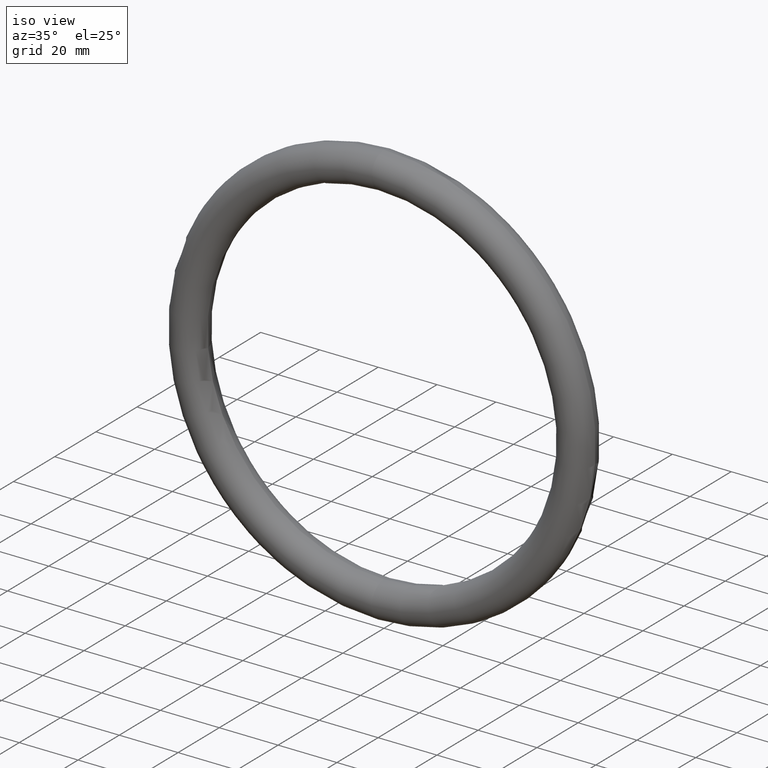
[diagram: clean part render]
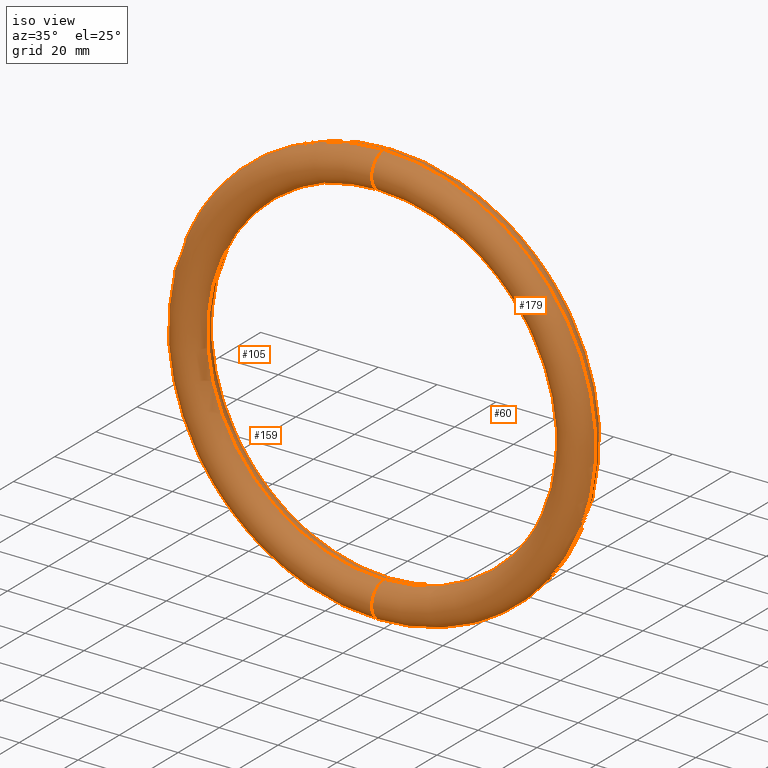
[diagram: same view with one multi-face feature highlighted, each face labeled with its STEP entity id]
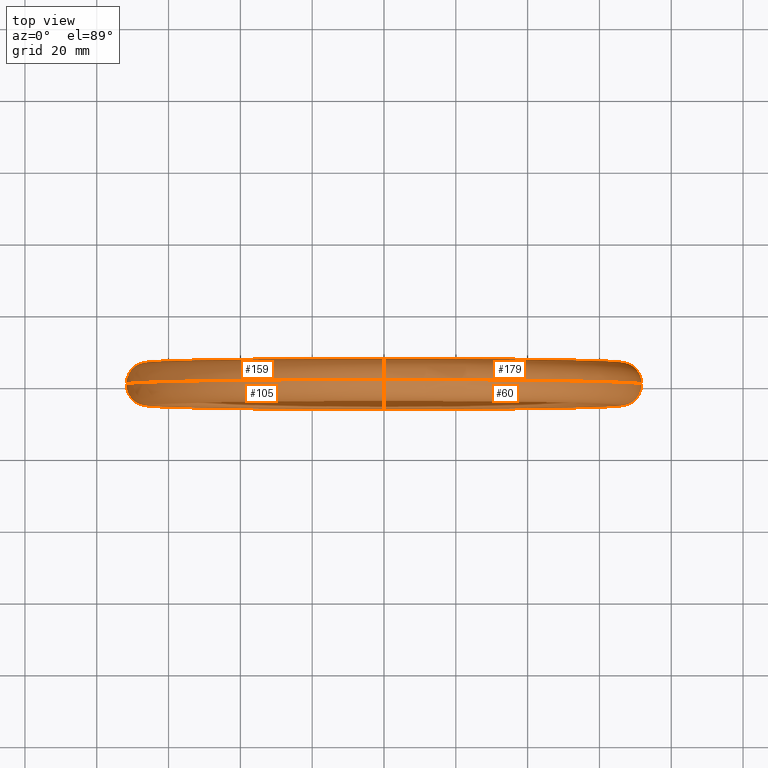
[diagram: same view with one multi-face feature highlighted, each face labeled with its STEP entity id]
A machine part, iso view. The highlighted faces form ONE feature: a constant-radius fillet chain: 4 tangent blend faces with common blend radius 6 mm. The faces share edges in the B-rep.
A second angle (top view) of the same feature is appended — it is thin or edge-on in the first view.
Their STEP definitions:
[1] entity #179 (Torus):
#12 = CIRCLE ( 'NONE', #49, 59.99999999999998579 ) ;
#15 = AXIS2_PLACEMENT_3D ( 'NONE', #102, #131, #232 ) ;
#25 = VERTEX_POINT ( 'NONE', #79 ) ;
#30 = AXIS2_PLACEMENT_3D ( 'NONE', #233, #185, #45 ) ;
#43 = VERTEX_POINT ( 'NONE', #100 ) ;
#45 = DIRECTION ( 'NONE',  ( 0.000000000000000000, 0.000000000000000000, 1.000000000000000000 ) ) ;
#49 = AXIS2_PLACEMENT_3D ( 'NONE', #89, #202, #203 ) ;
#58 = CIRCLE ( 'NONE', #30, 6.000000000000005329 ) ;
#62 = EDGE_LOOP ( 'NONE', ( #199, #137, #118, #71 ) ) ;
#68 = FACE_OUTER_BOUND ( 'NONE', #62, .T. ) ;
#71 = ORIENTED_EDGE ( 'NONE', *, *, #146, .T. ) ;
#72 = AXIS2_PLACEMENT_3D ( 'NONE', #264, #261, #147 ) ;
#79 = CARTESIAN_POINT ( 'NONE',  ( 8.817456953860941711E-15, 0.000000000000000000, 72.00000000000000000 ) ) ;
#89 = CARTESIAN_POINT ( 'NONE',  ( 0.000000000000000000, 7.347880794884122694E-16, 0.000000000000000000 ) ) ;
#90 = EDGE_CURVE ( 'NONE', #142, #25, #155, .T. ) ;
#100 = CARTESIAN_POINT ( 'NONE',  ( 7.347880794884118356E-15, 0.000000000000000000, 59.99999999999998579 ) ) ;
#102 = CARTESIAN_POINT ( 'NONE',  ( 0.000000000000000000, 0.000000000000000000, 0.000000000000000000 ) ) ;
#108 = EDGE_CURVE ( 'NONE', #223, #142, #58, .T. ) ;
#116 = TOROIDAL_SURFACE ( 'NONE', #72, 65.99999999999998579, 6.000000000000002665 ) ;
#117 = CARTESIAN_POINT ( 'NONE',  ( 8.082668874372530822E-15, 0.000000000000000000, 65.99999999999998579 ) ) ;
#118 = ORIENTED_EDGE ( 'NONE', *, *, #141, .T. ) ;
#128 = CIRCLE ( 'NONE', #153, 6.000000000000005329 ) ;
#131 = DIRECTION ( 'NONE',  ( -0.000000000000000000, -1.000000000000000000, -0.000000000000000000 ) ) ;
#137 = ORIENTED_EDGE ( 'NONE', *, *, #108, .F. ) ;
#141 = EDGE_CURVE ( 'NONE', #223, #43, #12, .T. ) ;
#142 = VERTEX_POINT ( 'NONE', #251 ) ;
#146 = EDGE_CURVE ( 'NONE', #43, #25, #128, .T. ) ;
#147 = DIRECTION ( 'NONE',  ( 0.000000000000000000, 0.000000000000000000, -1.000000000000000000 ) ) ;
#153 = AXIS2_PLACEMENT_3D ( 'NONE', #117, #241, #187 ) ;
#155 = CIRCLE ( 'NONE', #15, 72.00000000000000000 ) ;
#179 = ADVANCED_FACE ( 'NONE', ( #68 ), #116, .T. ) ;
#185 = DIRECTION ( 'NONE',  ( -1.000000000000000000, 0.000000000000000000, 0.000000000000000000 ) ) ;
#187 = DIRECTION ( 'NONE',  ( -1.224646799147351975E-16, 0.000000000000000000, -1.000000000000000000 ) ) ;
#199 = ORIENTED_EDGE ( 'NONE', *, *, #90, .F. ) ;
#202 = DIRECTION ( 'NONE',  ( -0.000000000000000000, -1.000000000000000000, -0.000000000000000000 ) ) ;
#203 = DIRECTION ( 'NONE',  ( 0.000000000000000000, 0.000000000000000000, -1.000000000000000000 ) ) ;
#223 = VERTEX_POINT ( 'NONE', #224 ) ;
#224 = CARTESIAN_POINT ( 'NONE',  ( 0.000000000000000000, 0.000000000000000000, -59.99999999999998579 ) ) ;
#232 = DIRECTION ( 'NONE',  ( 0.000000000000000000, 0.000000000000000000, -1.000000000000000000 ) ) ;
#233 = CARTESIAN_POINT ( 'NONE',  ( 0.000000000000000000, 0.000000000000000000, -65.99999999999998579 ) ) ;
#241 = DIRECTION ( 'NONE',  ( 1.000000000000000000, 0.000000000000000000, -1.224646799147353207E-16 ) ) ;
#251 = CARTESIAN_POINT ( 'NONE',  ( 0.000000000000000000, 0.000000000000000000, -72.00000000000000000 ) ) ;
#261 = DIRECTION ( 'NONE',  ( -0.000000000000000000, -1.000000000000000000, -0.000000000000000000 ) ) ;
#264 = CARTESIAN_POINT ( 'NONE',  ( 0.000000000000000000, 0.000000000000000000, 0.000000000000000000 ) ) ;
[2] entity #159 (Torus):
#2 = ORIENTED_EDGE ( 'NONE', *, *, #136, .T. ) ;
#25 = VERTEX_POINT ( 'NONE', #79 ) ;
#29 = DIRECTION ( 'NONE',  ( 0.000000000000000000, 0.000000000000000000, -1.000000000000000000 ) ) ;
#30 = AXIS2_PLACEMENT_3D ( 'NONE', #233, #185, #45 ) ;
#33 = AXIS2_PLACEMENT_3D ( 'NONE', #242, #164, #29 ) ;
#42 = AXIS2_PLACEMENT_3D ( 'NONE', #53, #247, #121 ) ;
#43 = VERTEX_POINT ( 'NONE', #100 ) ;
#45 = DIRECTION ( 'NONE',  ( 0.000000000000000000, 0.000000000000000000, 1.000000000000000000 ) ) ;
#53 = CARTESIAN_POINT ( 'NONE',  ( 0.000000000000000000, 0.000000000000000000, 0.000000000000000000 ) ) ;
#58 = CIRCLE ( 'NONE', #30, 6.000000000000005329 ) ;
#63 = AXIS2_PLACEMENT_3D ( 'NONE', #200, #112, #216 ) ;
#74 = EDGE_LOOP ( 'NONE', ( #145, #123, #2, #237 ) ) ;
#79 = CARTESIAN_POINT ( 'NONE',  ( 8.817456953860941711E-15, 0.000000000000000000, 72.00000000000000000 ) ) ;
#100 = CARTESIAN_POINT ( 'NONE',  ( 7.347880794884118356E-15, 0.000000000000000000, 59.99999999999998579 ) ) ;
#108 = EDGE_CURVE ( 'NONE', #223, #142, #58, .T. ) ;
#112 = DIRECTION ( 'NONE',  ( -0.000000000000000000, -1.000000000000000000, -0.000000000000000000 ) ) ;
#117 = CARTESIAN_POINT ( 'NONE',  ( 8.082668874372530822E-15, 0.000000000000000000, 65.99999999999998579 ) ) ;
#121 = DIRECTION ( 'NONE',  ( 0.000000000000000000, 0.000000000000000000, -1.000000000000000000 ) ) ;
#123 = ORIENTED_EDGE ( 'NONE', *, *, #146, .F. ) ;
#128 = CIRCLE ( 'NONE', #153, 6.000000000000005329 ) ;
#135 = FACE_OUTER_BOUND ( 'NONE', #74, .T. ) ;
#136 = EDGE_CURVE ( 'NONE', #43, #223, #239, .T. ) ;
#142 = VERTEX_POINT ( 'NONE', #251 ) ;
#145 = ORIENTED_EDGE ( 'NONE', *, *, #262, .F. ) ;
#146 = EDGE_CURVE ( 'NONE', #43, #25, #128, .T. ) ;
#153 = AXIS2_PLACEMENT_3D ( 'NONE', #117, #241, #187 ) ;
#159 = ADVANCED_FACE ( 'NONE', ( #135 ), #189, .T. ) ;
#161 = CIRCLE ( 'NONE', #42, 72.00000000000000000 ) ;
#164 = DIRECTION ( 'NONE',  ( -0.000000000000000000, -1.000000000000000000, -0.000000000000000000 ) ) ;
#185 = DIRECTION ( 'NONE',  ( -1.000000000000000000, 0.000000000000000000, 0.000000000000000000 ) ) ;
#187 = DIRECTION ( 'NONE',  ( -1.224646799147351975E-16, 0.000000000000000000, -1.000000000000000000 ) ) ;
#189 = TOROIDAL_SURFACE ( 'NONE', #33, 65.99999999999998579, 6.000000000000002665 ) ;
#200 = CARTESIAN_POINT ( 'NONE',  ( 0.000000000000000000, 7.347880794884122694E-16, 0.000000000000000000 ) ) ;
#216 = DIRECTION ( 'NONE',  ( 0.000000000000000000, 0.000000000000000000, -1.000000000000000000 ) ) ;
#223 = VERTEX_POINT ( 'NONE', #224 ) ;
#224 = CARTESIAN_POINT ( 'NONE',  ( 0.000000000000000000, 0.000000000000000000, -59.99999999999998579 ) ) ;
#233 = CARTESIAN_POINT ( 'NONE',  ( 0.000000000000000000, 0.000000000000000000, -65.99999999999998579 ) ) ;
#237 = ORIENTED_EDGE ( 'NONE', *, *, #108, .T. ) ;
#239 = CIRCLE ( 'NONE', #63, 59.99999999999998579 ) ;
#241 = DIRECTION ( 'NONE',  ( 1.000000000000000000, 0.000000000000000000, -1.224646799147353207E-16 ) ) ;
#242 = CARTESIAN_POINT ( 'NONE',  ( 0.000000000000000000, 0.000000000000000000, 0.000000000000000000 ) ) ;
#247 = DIRECTION ( 'NONE',  ( -0.000000000000000000, -1.000000000000000000, -0.000000000000000000 ) ) ;
#251 = CARTESIAN_POINT ( 'NONE',  ( 0.000000000000000000, 0.000000000000000000, -72.00000000000000000 ) ) ;
#262 = EDGE_CURVE ( 'NONE', #25, #142, #161, .T. ) ;
[3] entity #105 (Torus):
#4 = EDGE_CURVE ( 'NONE', #25, #43, #204, .T. ) ;
#14 = CARTESIAN_POINT ( 'NONE',  ( 0.000000000000000000, 0.000000000000000000, 0.000000000000000000 ) ) ;
#25 = VERTEX_POINT ( 'NONE', #79 ) ;
#35 = EDGE_CURVE ( 'NONE', #142, #223, #210, .T. ) ;
#36 = DIRECTION ( 'NONE',  ( -1.224646799147351975E-16, 0.000000000000000000, -1.000000000000000000 ) ) ;
#42 = AXIS2_PLACEMENT_3D ( 'NONE', #53, #247, #121 ) ;
#43 = VERTEX_POINT ( 'NONE', #100 ) ;
#53 = CARTESIAN_POINT ( 'NONE',  ( 0.000000000000000000, 0.000000000000000000, 0.000000000000000000 ) ) ;
#63 = AXIS2_PLACEMENT_3D ( 'NONE', #200, #112, #216 ) ;
#65 = FACE_OUTER_BOUND ( 'NONE', #114, .T. ) ;
#66 = ORIENTED_EDGE ( 'NONE', *, *, #35, .T. ) ;
#79 = CARTESIAN_POINT ( 'NONE',  ( 8.817456953860941711E-15, 0.000000000000000000, 72.00000000000000000 ) ) ;
#100 = CARTESIAN_POINT ( 'NONE',  ( 7.347880794884118356E-15, 0.000000000000000000, 59.99999999999998579 ) ) ;
#105 = ADVANCED_FACE ( 'NONE', ( #65 ), #253, .T. ) ;
#109 = DIRECTION ( 'NONE',  ( 0.000000000000000000, 0.000000000000000000, -1.000000000000000000 ) ) ;
#112 = DIRECTION ( 'NONE',  ( -0.000000000000000000, -1.000000000000000000, -0.000000000000000000 ) ) ;
#114 = EDGE_LOOP ( 'NONE', ( #240, #178, #66, #182 ) ) ;
#121 = DIRECTION ( 'NONE',  ( 0.000000000000000000, 0.000000000000000000, -1.000000000000000000 ) ) ;
#136 = EDGE_CURVE ( 'NONE', #43, #223, #239, .T. ) ;
#142 = VERTEX_POINT ( 'NONE', #251 ) ;
#150 = DIRECTION ( 'NONE',  ( 1.000000000000000000, 0.000000000000000000, -1.224646799147353207E-16 ) ) ;
#160 = AXIS2_PLACEMENT_3D ( 'NONE', #265, #150, #36 ) ;
#161 = CIRCLE ( 'NONE', #42, 72.00000000000000000 ) ;
#171 = DIRECTION ( 'NONE',  ( 0.000000000000000000, 0.000000000000000000, 1.000000000000000000 ) ) ;
#178 = ORIENTED_EDGE ( 'NONE', *, *, #262, .T. ) ;
#182 = ORIENTED_EDGE ( 'NONE', *, *, #136, .F. ) ;
#200 = CARTESIAN_POINT ( 'NONE',  ( 0.000000000000000000, 7.347880794884122694E-16, 0.000000000000000000 ) ) ;
#204 = CIRCLE ( 'NONE', #160, 6.000000000000005329 ) ;
#210 = CIRCLE ( 'NONE', #259, 6.000000000000005329 ) ;
#211 = DIRECTION ( 'NONE',  ( -1.000000000000000000, 0.000000000000000000, 0.000000000000000000 ) ) ;
#216 = DIRECTION ( 'NONE',  ( 0.000000000000000000, 0.000000000000000000, -1.000000000000000000 ) ) ;
#223 = VERTEX_POINT ( 'NONE', #224 ) ;
#224 = CARTESIAN_POINT ( 'NONE',  ( 0.000000000000000000, 0.000000000000000000, -59.99999999999998579 ) ) ;
#229 = DIRECTION ( 'NONE',  ( -0.000000000000000000, -1.000000000000000000, -0.000000000000000000 ) ) ;
#239 = CIRCLE ( 'NONE', #63, 59.99999999999998579 ) ;
#240 = ORIENTED_EDGE ( 'NONE', *, *, #4, .F. ) ;
#247 = DIRECTION ( 'NONE',  ( -0.000000000000000000, -1.000000000000000000, -0.000000000000000000 ) ) ;
#251 = CARTESIAN_POINT ( 'NONE',  ( 0.000000000000000000, 0.000000000000000000, -72.00000000000000000 ) ) ;
#253 = TOROIDAL_SURFACE ( 'NONE', #271, 65.99999999999998579, 6.000000000000002665 ) ;
#259 = AXIS2_PLACEMENT_3D ( 'NONE', #267, #211, #171 ) ;
#262 = EDGE_CURVE ( 'NONE', #25, #142, #161, .T. ) ;
#265 = CARTESIAN_POINT ( 'NONE',  ( 8.082668874372530822E-15, 0.000000000000000000, 65.99999999999998579 ) ) ;
#267 = CARTESIAN_POINT ( 'NONE',  ( 0.000000000000000000, 0.000000000000000000, -65.99999999999998579 ) ) ;
#271 = AXIS2_PLACEMENT_3D ( 'NONE', #14, #229, #109 ) ;
[4] entity #60 (Torus):
#4 = EDGE_CURVE ( 'NONE', #25, #43, #204, .T. ) ;
#12 = CIRCLE ( 'NONE', #49, 59.99999999999998579 ) ;
#15 = AXIS2_PLACEMENT_3D ( 'NONE', #102, #131, #232 ) ;
#21 = ORIENTED_EDGE ( 'NONE', *, *, #90, .T. ) ;
#25 = VERTEX_POINT ( 'NONE', #79 ) ;
#35 = EDGE_CURVE ( 'NONE', #142, #223, #210, .T. ) ;
#36 = DIRECTION ( 'NONE',  ( -1.224646799147351975E-16, 0.000000000000000000, -1.000000000000000000 ) ) ;
#38 = AXIS2_PLACEMENT_3D ( 'NONE', #130, #96, #80 ) ;
#43 = VERTEX_POINT ( 'NONE', #100 ) ;
#49 = AXIS2_PLACEMENT_3D ( 'NONE', #89, #202, #203 ) ;
#60 = ADVANCED_FACE ( 'NONE', ( #140 ), #183, .T. ) ;
#79 = CARTESIAN_POINT ( 'NONE',  ( 8.817456953860941711E-15, 0.000000000000000000, 72.00000000000000000 ) ) ;
#80 = DIRECTION ( 'NONE',  ( 0.000000000000000000, 0.000000000000000000, -1.000000000000000000 ) ) ;
#89 = CARTESIAN_POINT ( 'NONE',  ( 0.000000000000000000, 7.347880794884122694E-16, 0.000000000000000000 ) ) ;
#90 = EDGE_CURVE ( 'NONE', #142, #25, #155, .T. ) ;
#96 = DIRECTION ( 'NONE',  ( -0.000000000000000000, -1.000000000000000000, -0.000000000000000000 ) ) ;
#100 = CARTESIAN_POINT ( 'NONE',  ( 7.347880794884118356E-15, 0.000000000000000000, 59.99999999999998579 ) ) ;
#102 = CARTESIAN_POINT ( 'NONE',  ( 0.000000000000000000, 0.000000000000000000, 0.000000000000000000 ) ) ;
#129 = EDGE_LOOP ( 'NONE', ( #246, #21, #227, #244 ) ) ;
#130 = CARTESIAN_POINT ( 'NONE',  ( 0.000000000000000000, 0.000000000000000000, 0.000000000000000000 ) ) ;
#131 = DIRECTION ( 'NONE',  ( -0.000000000000000000, -1.000000000000000000, -0.000000000000000000 ) ) ;
#140 = FACE_OUTER_BOUND ( 'NONE', #129, .T. ) ;
#141 = EDGE_CURVE ( 'NONE', #223, #43, #12, .T. ) ;
#142 = VERTEX_POINT ( 'NONE', #251 ) ;
#150 = DIRECTION ( 'NONE',  ( 1.000000000000000000, 0.000000000000000000, -1.224646799147353207E-16 ) ) ;
#155 = CIRCLE ( 'NONE', #15, 72.00000000000000000 ) ;
#160 = AXIS2_PLACEMENT_3D ( 'NONE', #265, #150, #36 ) ;
#171 = DIRECTION ( 'NONE',  ( 0.000000000000000000, 0.000000000000000000, 1.000000000000000000 ) ) ;
#183 = TOROIDAL_SURFACE ( 'NONE', #38, 65.99999999999998579, 6.000000000000002665 ) ;
#202 = DIRECTION ( 'NONE',  ( -0.000000000000000000, -1.000000000000000000, -0.000000000000000000 ) ) ;
#203 = DIRECTION ( 'NONE',  ( 0.000000000000000000, 0.000000000000000000, -1.000000000000000000 ) ) ;
#204 = CIRCLE ( 'NONE', #160, 6.000000000000005329 ) ;
#210 = CIRCLE ( 'NONE', #259, 6.000000000000005329 ) ;
#211 = DIRECTION ( 'NONE',  ( -1.000000000000000000, 0.000000000000000000, 0.000000000000000000 ) ) ;
#223 = VERTEX_POINT ( 'NONE', #224 ) ;
#224 = CARTESIAN_POINT ( 'NONE',  ( 0.000000000000000000, 0.000000000000000000, -59.99999999999998579 ) ) ;
#227 = ORIENTED_EDGE ( 'NONE', *, *, #4, .T. ) ;
#232 = DIRECTION ( 'NONE',  ( 0.000000000000000000, 0.000000000000000000, -1.000000000000000000 ) ) ;
#244 = ORIENTED_EDGE ( 'NONE', *, *, #141, .F. ) ;
#246 = ORIENTED_EDGE ( 'NONE', *, *, #35, .F. ) ;
#251 = CARTESIAN_POINT ( 'NONE',  ( 0.000000000000000000, 0.000000000000000000, -72.00000000000000000 ) ) ;
#259 = AXIS2_PLACEMENT_3D ( 'NONE', #267, #211, #171 ) ;
#265 = CARTESIAN_POINT ( 'NONE',  ( 8.082668874372530822E-15, 0.000000000000000000, 65.99999999999998579 ) ) ;
#267 = CARTESIAN_POINT ( 'NONE',  ( 0.000000000000000000, 0.000000000000000000, -65.99999999999998579 ) ) ;